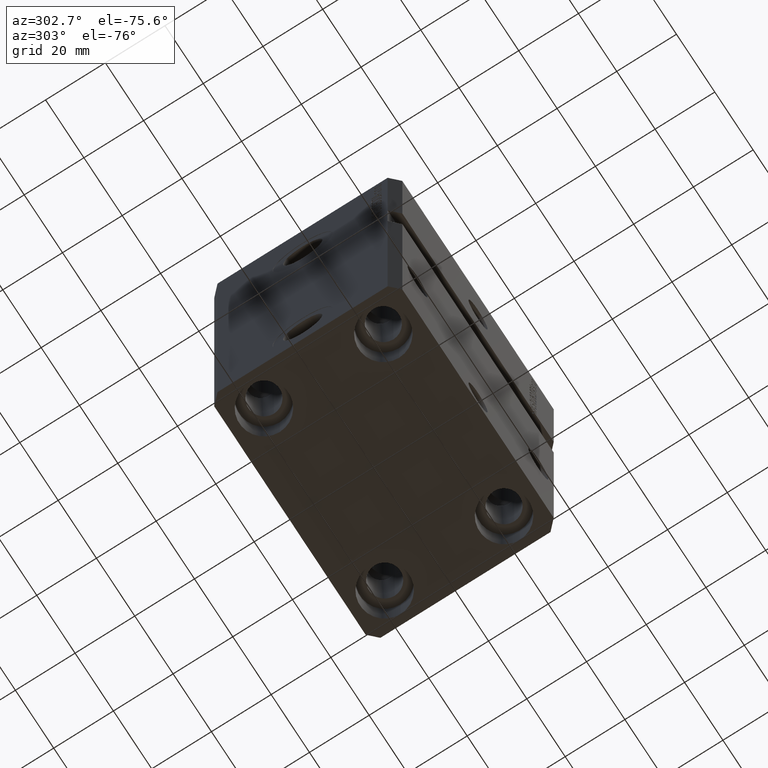
[diagram: clean part render]
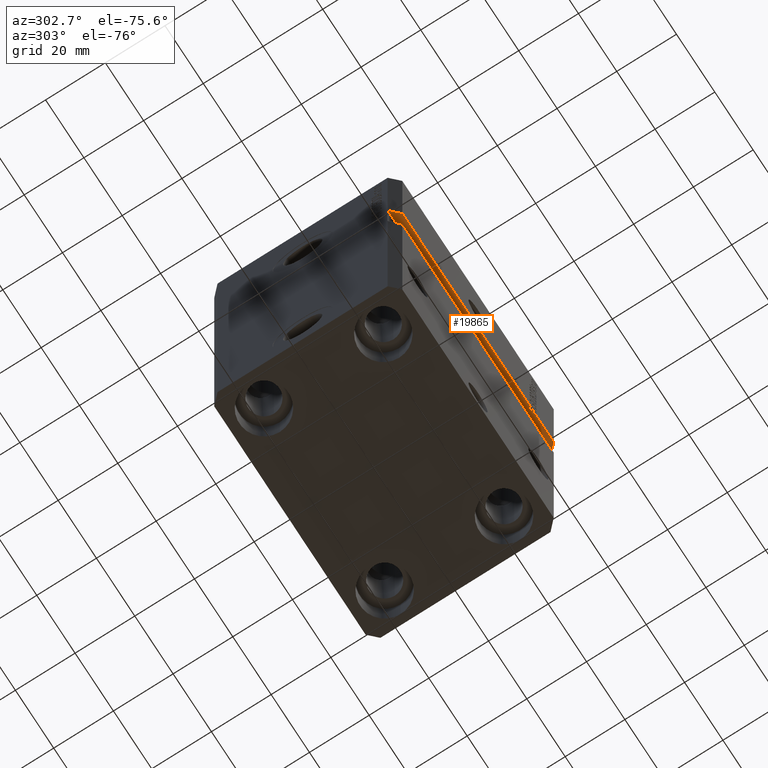
[diagram: same view with one face highlighted and labeled with its STEP entity id]
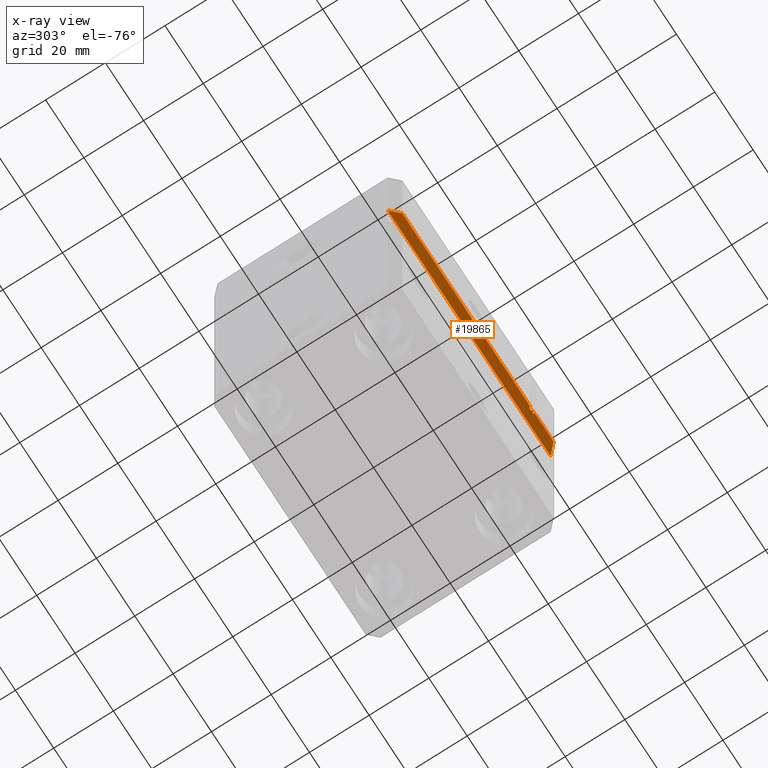
[diagram: x-ray of the same camera — body ghosted, the highlighted face saturated]
A machine part, auxiliary view. The second image highlights one B-rep face of the part: STEP entity #19865.
The next image is the same camera in x-ray: the body ghosted, the highlighted face saturated — about 0% of this face is hidden behind the body in this view.
In plain terms, the highlighted planar face has unit normal (-0, -0, 1).
Its self-contained STEP definition (entity closure, byte-faithful):
#113 = FACE_OUTER_BOUND ( 'NONE', #128, .T. ) ;
#128 = EDGE_LOOP ( 'NONE', ( #13841, #18741, #2426, #38945, #41024, #17128, #26905, #7777, #33030, #3310, #39728, #27427 ) ) ;
#142 = VERTEX_POINT ( 'NONE', #9743 ) ;
#1591 = CARTESIAN_POINT ( 'NONE',  ( 42.50000000000001421, -31.49999999999999289, -37.00000000000000000 ) ) ;
#1698 = DIRECTION ( 'NONE',  ( -1.000000000000000000, -1.632680918566406300E-16, -8.163404592832031500E-17 ) ) ;
#2006 = DIRECTION ( 'NONE',  ( -1.000000000000000000, -1.632680918566406300E-16, -8.163404592832031500E-17 ) ) ;
#2080 = EDGE_CURVE ( 'NONE', #5390, #7283, #26858, .T. ) ;
#2426 = ORIENTED_EDGE ( 'NONE', *, *, #32532, .T. ) ;
#2823 = DIRECTION ( 'NONE',  ( -2.352167425053553784E-16, 1.000000000000000000, -9.600847180395943443E-33 ) ) ;
#2902 = EDGE_CURVE ( 'NONE', #9486, #42917, #9181, .T. ) ;
#3305 = VECTOR ( 'NONE', #38067, 1000.000000000000000 ) ;
#3310 = ORIENTED_EDGE ( 'NONE', *, *, #2902, .T. ) ;
#3730 = EDGE_CURVE ( 'NONE', #36058, #9486, #31475, .T. ) ;
#3927 = VERTEX_POINT ( 'NONE', #33813 ) ;
#5390 = VERTEX_POINT ( 'NONE', #35472 ) ;
#5723 = CARTESIAN_POINT ( 'NONE',  ( 27.36912325285900494, -31.49999999999999289, -37.00000000000000711 ) ) ;
#6153 = EDGE_CURVE ( 'NONE', #11423, #13921, #26976, .T. ) ;
#6952 = VECTOR ( 'NONE', #1698, 1000.000000000000000 ) ;
#7283 = VERTEX_POINT ( 'NONE', #25734 ) ;
#7342 = DIRECTION ( 'NONE',  ( 2.352167425053553784E-16, -1.000000000000000000, 9.600847180395943443E-33 ) ) ;
#7777 = ORIENTED_EDGE ( 'NONE', *, *, #21052, .T. ) ;
#7960 = PLANE ( 'NONE',  #17473 ) ;
#9181 = LINE ( 'NONE', #1591, #13811 ) ;
#9222 = VECTOR ( 'NONE', #25683, 1000.000000000000000 ) ;
#9340 = CARTESIAN_POINT ( 'NONE',  ( 29.45454545454544260, -30.99999999999997868, -37.00000000000000711 ) ) ;
#9486 = VERTEX_POINT ( 'NONE', #5723 ) ;
#9591 = EDGE_CURVE ( 'NONE', #142, #11423, #25593, .T. ) ;
#9743 = CARTESIAN_POINT ( 'NONE',  ( 29.04545454545453254, -30.99999999999999289, -37.00000000000000000 ) ) ;
#11423 = VERTEX_POINT ( 'NONE', #13755 ) ;
#12212 = CARTESIAN_POINT ( 'NONE',  ( 27.36912325285895164, -30.99999999999998579, -37.00000000000000711 ) ) ;
#12445 = VECTOR ( 'NONE', #39914, 1000.000000000000000 ) ;
#12903 = CARTESIAN_POINT ( 'NONE',  ( 42.50000000000001421, -31.49999999999999289, -37.00000000000000000 ) ) ;
#13392 = CARTESIAN_POINT ( 'NONE',  ( 28.43744795748432352, -30.99999999999999289, -37.00000000000000000 ) ) ;
#13755 = CARTESIAN_POINT ( 'NONE',  ( 29.04545454545453254, -31.49999999999999289, -37.00000000000000000 ) ) ;
#13811 = VECTOR ( 'NONE', #45495, 1000.000000000000000 ) ;
#13841 = ORIENTED_EDGE ( 'NONE', *, *, #37372, .T. ) ;
#13921 = VERTEX_POINT ( 'NONE', #40731 ) ;
#15504 = VECTOR ( 'NONE', #2823, 1000.000000000000000 ) ;
#16487 = CARTESIAN_POINT ( 'NONE',  ( 2.902851328095174237E-15, -30.99999999999997868, -37.00000000000000711 ) ) ;
#17128 = ORIENTED_EDGE ( 'NONE', *, *, #6153, .T. ) ;
#17473 = AXIS2_PLACEMENT_3D ( 'NONE', #33087, #22175, #18140 ) ;
#17895 = CARTESIAN_POINT ( 'NONE',  ( -39.50000000000000000, -31.50000000000000711, -37.00000000000000711 ) ) ;
#18140 = DIRECTION ( 'NONE',  ( 1.000000000000000000, 0.000000000000000000, 8.163404592832031500E-17 ) ) ;
#18741 = ORIENTED_EDGE ( 'NONE', *, *, #45127, .T. ) ;
#19816 = DIRECTION ( 'NONE',  ( -1.000000000000000000, 0.000000000000000000, -8.163404592832031500E-17 ) ) ;
#19865 = ADVANCED_FACE ( 'NONE', ( #113 ), #7960, .F. ) ;
#20499 = LINE ( 'NONE', #13392, #3305 ) ;
#20794 = VECTOR ( 'NONE', #19816, 1000.000000000000000 ) ;
#20840 = CARTESIAN_POINT ( 'NONE',  ( 29.45454545454544260, -30.99999999999999289, -37.00000000000000000 ) ) ;
#21052 = EDGE_CURVE ( 'NONE', #3927, #36058, #45043, .T. ) ;
#21153 = EDGE_CURVE ( 'NONE', #42917, #7283, #39695, .T. ) ;
#21429 = DIRECTION ( 'NONE',  ( -1.000000000000000000, 0.000000000000000000, -8.163404592832031500E-17 ) ) ;
#22063 = VECTOR ( 'NONE', #21429, 1000.000000000000000 ) ;
#22126 = VECTOR ( 'NONE', #24366, 1000.000000000000000 ) ;
#22175 = DIRECTION ( 'NONE',  ( -8.163404592832031500E-17, -9.600847180396129553E-33, 1.000000000000000000 ) ) ;
#23054 = CARTESIAN_POINT ( 'NONE',  ( 42.50000000000001421, -28.49999999999999289, -37.00000000000000000 ) ) ;
#23170 = VECTOR ( 'NONE', #2006, 1000.000000000000000 ) ;
#23894 = CARTESIAN_POINT ( 'NONE',  ( 2.902851328095174237E-15, -30.99999999999997868, -37.00000000000000711 ) ) ;
#24366 = DIRECTION ( 'NONE',  ( 2.352167425053553291E-16, -1.000000000000000000, 9.600847180395940707E-33 ) ) ;
#24407 = LINE ( 'NONE', #20840, #15504 ) ;
#25593 = LINE ( 'NONE', #28698, #39157 ) ;
#25683 = DIRECTION ( 'NONE',  ( -0.7071067811865472397, 0.7071067811865479058, -5.772398745160932566E-17 ) ) ;
#25734 = CARTESIAN_POINT ( 'NONE',  ( -42.50000000000000000, -28.50000000000000711, -37.00000000000000711 ) ) ;
#26858 = LINE ( 'NONE', #23054, #6952 ) ;
#26905 = ORIENTED_EDGE ( 'NONE', *, *, #39670, .T. ) ;
#26976 = LINE ( 'NONE', #41441, #44972 ) ;
#27427 = ORIENTED_EDGE ( 'NONE', *, *, #2080, .F. ) ;
#27437 = VERTEX_POINT ( 'NONE', #44153 ) ;
#28698 = CARTESIAN_POINT ( 'NONE',  ( 29.04545454545453254, -30.99999999999999289, -37.00000000000000000 ) ) ;
#29472 = CARTESIAN_POINT ( 'NONE',  ( -42.50000000000000711, -28.49999999999999645, -37.00000000000000711 ) ) ;
#30025 = LINE ( 'NONE', #16487, #20794 ) ;
#30757 = DIRECTION ( 'NONE',  ( -1.000000000000000000, 0.000000000000000000, -8.163404592832031500E-17 ) ) ;
#31475 = LINE ( 'NONE', #46200, #22126 ) ;
#32048 = VERTEX_POINT ( 'NONE', #9340 ) ;
#32532 = EDGE_CURVE ( 'NONE', #39705, #32048, #24407, .T. ) ;
#33030 = ORIENTED_EDGE ( 'NONE', *, *, #3730, .T. ) ;
#33087 = CARTESIAN_POINT ( 'NONE',  ( 42.50000000000001421, -28.49999999999999289, -37.00000000000000000 ) ) ;
#33813 = CARTESIAN_POINT ( 'NONE',  ( 28.43744795748432352, -30.99999999999999289, -37.00000000000000000 ) ) ;
#35472 = CARTESIAN_POINT ( 'NONE',  ( 42.50000000000001421, -28.49999999999999289, -37.00000000000000000 ) ) ;
#36058 = VERTEX_POINT ( 'NONE', #12212 ) ;
#36124 = CARTESIAN_POINT ( 'NONE',  ( 39.50000000000000000, -31.50000000000000711, -37.00000000000000711 ) ) ;
#37372 = EDGE_CURVE ( 'NONE', #5390, #27437, #43732, .T. ) ;
#38067 = DIRECTION ( 'NONE',  ( -2.352167425053553784E-16, 1.000000000000000000, -9.600847180395946180E-33 ) ) ;
#38945 = ORIENTED_EDGE ( 'NONE', *, *, #41757, .T. ) ;
#39157 = VECTOR ( 'NONE', #7342, 1000.000000000000000 ) ;
#39670 = EDGE_CURVE ( 'NONE', #13921, #3927, #20499, .T. ) ;
#39695 = LINE ( 'NONE', #29472, #9222 ) ;
#39705 = VERTEX_POINT ( 'NONE', #46844 ) ;
#39728 = ORIENTED_EDGE ( 'NONE', *, *, #21153, .T. ) ;
#39914 = DIRECTION ( 'NONE',  ( -0.7071067811865483499, -0.7071067811865467956, -5.772398745160944892E-17 ) ) ;
#40731 = CARTESIAN_POINT ( 'NONE',  ( 28.43744795748428800, -31.49999999999999289, -37.00000000000000000 ) ) ;
#41024 = ORIENTED_EDGE ( 'NONE', *, *, #9591, .T. ) ;
#41441 = CARTESIAN_POINT ( 'NONE',  ( -39.50000000000001421, -31.50000000000000000, -37.00000000000000711 ) ) ;
#41757 = EDGE_CURVE ( 'NONE', #32048, #142, #30025, .T. ) ;
#42917 = VERTEX_POINT ( 'NONE', #17895 ) ;
#43732 = LINE ( 'NONE', #36124, #12445 ) ;
#44153 = CARTESIAN_POINT ( 'NONE',  ( 39.50000000000000711, -31.49999999999999289, -37.00000000000000000 ) ) ;
#44972 = VECTOR ( 'NONE', #30757, 1000.000000000000000 ) ;
#45043 = LINE ( 'NONE', #23894, #22063 ) ;
#45127 = EDGE_CURVE ( 'NONE', #27437, #39705, #46129, .T. ) ;
#45495 = DIRECTION ( 'NONE',  ( -1.000000000000000000, -1.632680918566406300E-16, -8.163404592832031500E-17 ) ) ;
#46129 = LINE ( 'NONE', #12903, #23170 ) ;
#46200 = CARTESIAN_POINT ( 'NONE',  ( 27.36912325285895164, -30.99999999999999289, -37.00000000000000000 ) ) ;
#46844 = CARTESIAN_POINT ( 'NONE',  ( 29.45454545454544260, -31.49999999999999289, -37.00000000000000000 ) ) ;